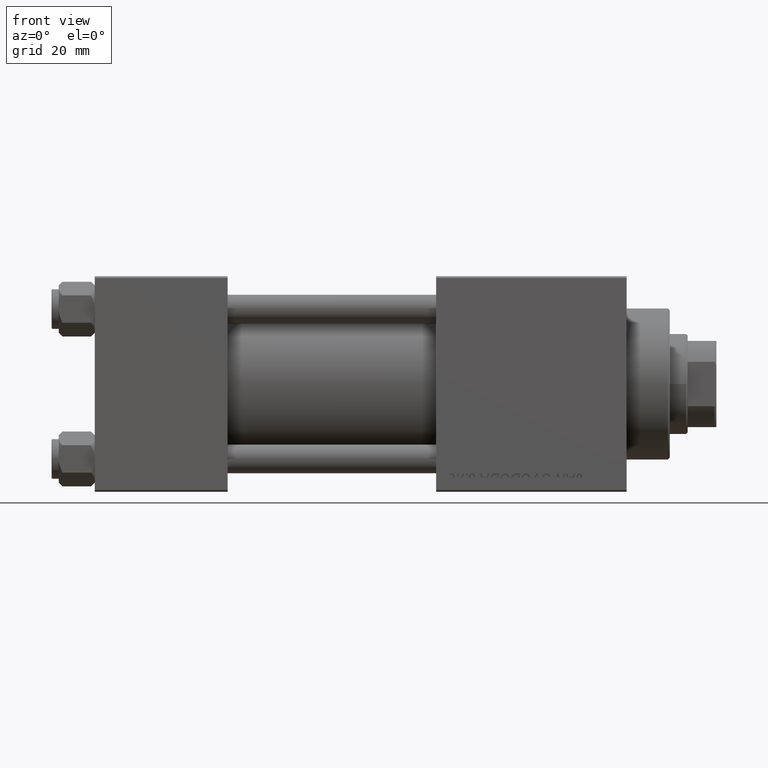
[diagram: clean part render]
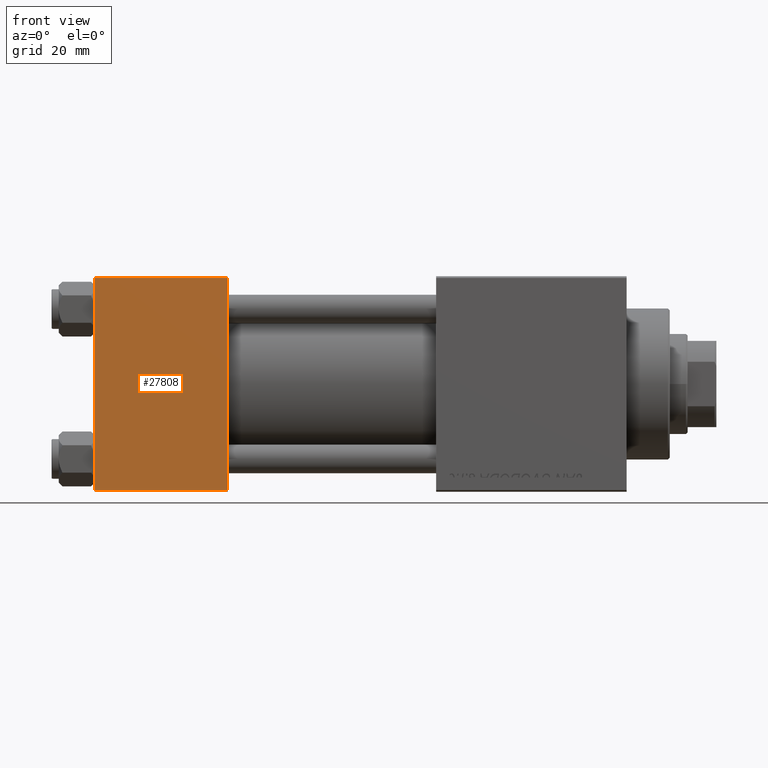
[diagram: same view with one face highlighted and labeled with its STEP entity id]
A machine part, front view. The second image highlights one B-rep face of the part: STEP entity #27808.
In plain terms, the highlighted planar face has unit normal (0, 1, 0).
Its self-contained STEP definition (entity closure, byte-faithful):
#146 = VERTEX_POINT ( 'NONE', #44193 ) ;
#3377 = VERTEX_POINT ( 'NONE', #5355 ) ;
#4510 = FACE_OUTER_BOUND ( 'NONE', #28825, .T. ) ;
#4874 = ORIENTED_EDGE ( 'NONE', *, *, #47429, .T. ) ;
#5355 = CARTESIAN_POINT ( 'NONE',  ( 37.00000000000000000, -30.00000000000000000, -29.50000000000001776 ) ) ;
#6209 = ORIENTED_EDGE ( 'NONE', *, *, #11038, .T. ) ;
#7300 = CARTESIAN_POINT ( 'NONE',  ( 0.000000000000000000, -30.00000000000000000, 29.99999999999999289 ) ) ;
#7581 = EDGE_CURVE ( 'NONE', #146, #3377, #26331, .T. ) ;
#7786 = AXIS2_PLACEMENT_3D ( 'NONE', #20019, #15954, #15712 ) ;
#8473 = VERTEX_POINT ( 'NONE', #36713 ) ;
#10134 = CARTESIAN_POINT ( 'NONE',  ( 0.000000000000000000, -30.00000000000000000, 29.49999999999999289 ) ) ;
#11038 = EDGE_CURVE ( 'NONE', #146, #14966, #49225, .T. ) ;
#12121 = VECTOR ( 'NONE', #49432, 1000.000000000000000 ) ;
#13931 = LINE ( 'NONE', #7300, #45275 ) ;
#14966 = VERTEX_POINT ( 'NONE', #10134 ) ;
#15712 = DIRECTION ( 'NONE',  ( 0.000000000000000000, -0.000000000000000000, 1.000000000000000000 ) ) ;
#15954 = DIRECTION ( 'NONE',  ( -0.000000000000000000, 1.000000000000000000, 0.000000000000000000 ) ) ;
#17965 = CARTESIAN_POINT ( 'NONE',  ( 37.00000000000000000, -30.00000000000000000, 29.99999999999999289 ) ) ;
#20019 = CARTESIAN_POINT ( 'NONE',  ( 37.00000000000000000, -30.00000000000000000, 29.99999999999999289 ) ) ;
#20318 = VECTOR ( 'NONE', #31889, 1000.000000000000000 ) ;
#21397 = ORIENTED_EDGE ( 'NONE', *, *, #7581, .F. ) ;
#23838 = PLANE ( 'NONE',  #7786 ) ;
#25763 = ORIENTED_EDGE ( 'NONE', *, *, #32674, .T. ) ;
#26331 = LINE ( 'NONE', #17965, #12121 ) ;
#27808 = ADVANCED_FACE ( 'NONE', ( #4510 ), #23838, .F. ) ;
#28493 = VECTOR ( 'NONE', #30201, 1000.000000000000000 ) ;
#28825 = EDGE_LOOP ( 'NONE', ( #25763, #4874, #21397, #6209 ) ) ;
#30201 = DIRECTION ( 'NONE',  ( -1.000000000000000000, 0.000000000000000000, 0.000000000000000000 ) ) ;
#31889 = DIRECTION ( 'NONE',  ( 1.000000000000000000, 0.000000000000000000, 0.000000000000000000 ) ) ;
#32674 = EDGE_CURVE ( 'NONE', #14966, #8473, #13931, .T. ) ;
#36713 = CARTESIAN_POINT ( 'NONE',  ( 0.000000000000000000, -30.00000000000000000, -29.50000000000001776 ) ) ;
#40485 = LINE ( 'NONE', #43798, #20318 ) ;
#41603 = CARTESIAN_POINT ( 'NONE',  ( 37.00000000000000000, -30.00000000000000000, 29.49999999999999289 ) ) ;
#43798 = CARTESIAN_POINT ( 'NONE',  ( 37.00000000000000000, -30.00000000000000000, -29.50000000000001776 ) ) ;
#44193 = CARTESIAN_POINT ( 'NONE',  ( 37.00000000000000000, -30.00000000000000000, 29.49999999999999289 ) ) ;
#45144 = DIRECTION ( 'NONE',  ( 0.000000000000000000, 0.000000000000000000, -1.000000000000000000 ) ) ;
#45275 = VECTOR ( 'NONE', #45144, 1000.000000000000000 ) ;
#47429 = EDGE_CURVE ( 'NONE', #8473, #3377, #40485, .T. ) ;
#49225 = LINE ( 'NONE', #41603, #28493 ) ;
#49432 = DIRECTION ( 'NONE',  ( 0.000000000000000000, 0.000000000000000000, -1.000000000000000000 ) ) ;